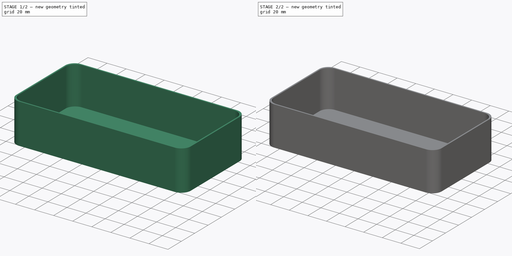
[diagram: build sequence overview — one tinted view per stage of 2, left to right]
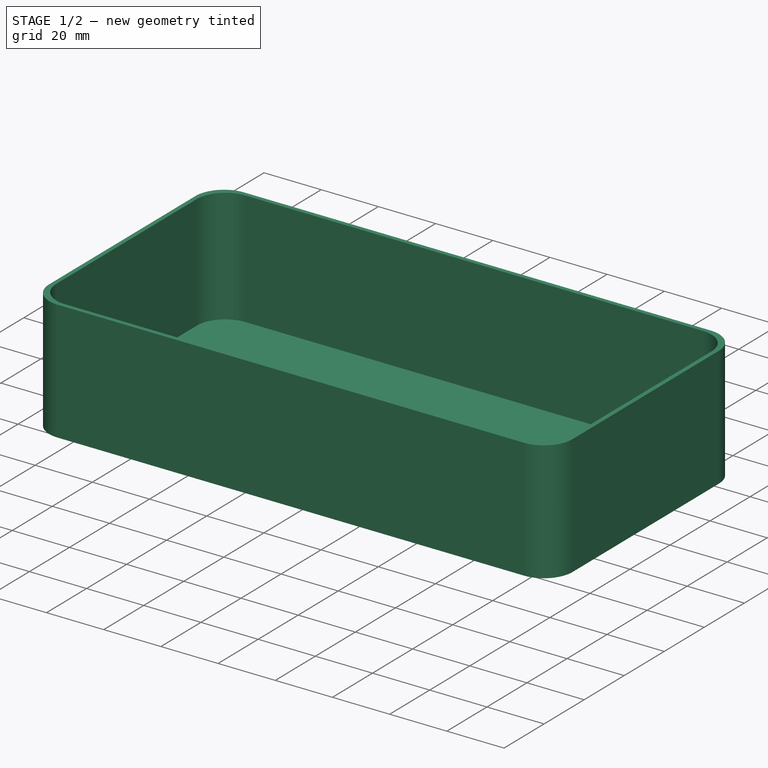
[diagram: stage 1 of 2 — iso view after this stage's code; geometry added in this stage tinted green]
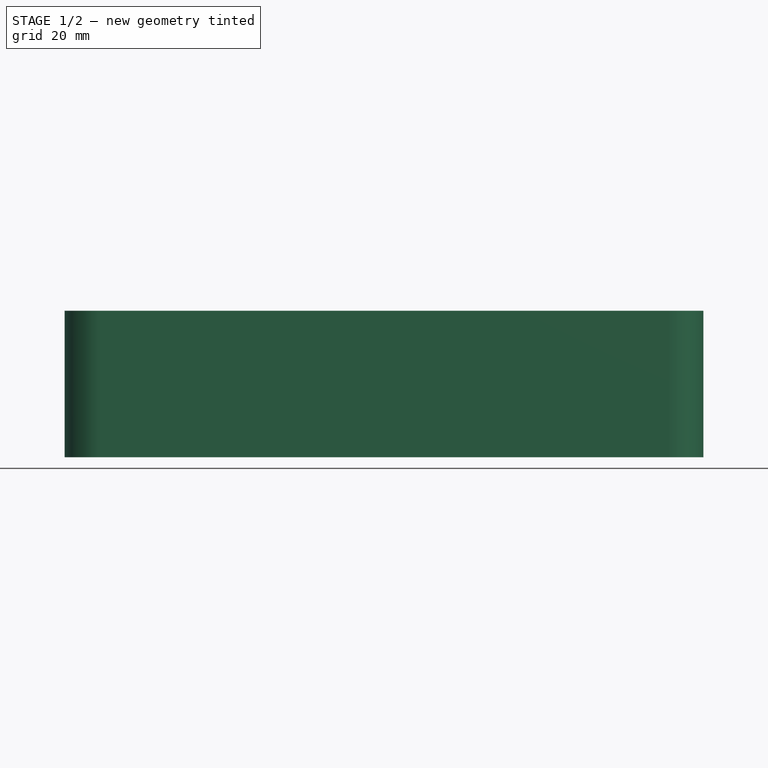
[diagram: stage 1 of 2 — front view after this stage's code; geometry added in this stage tinted green]
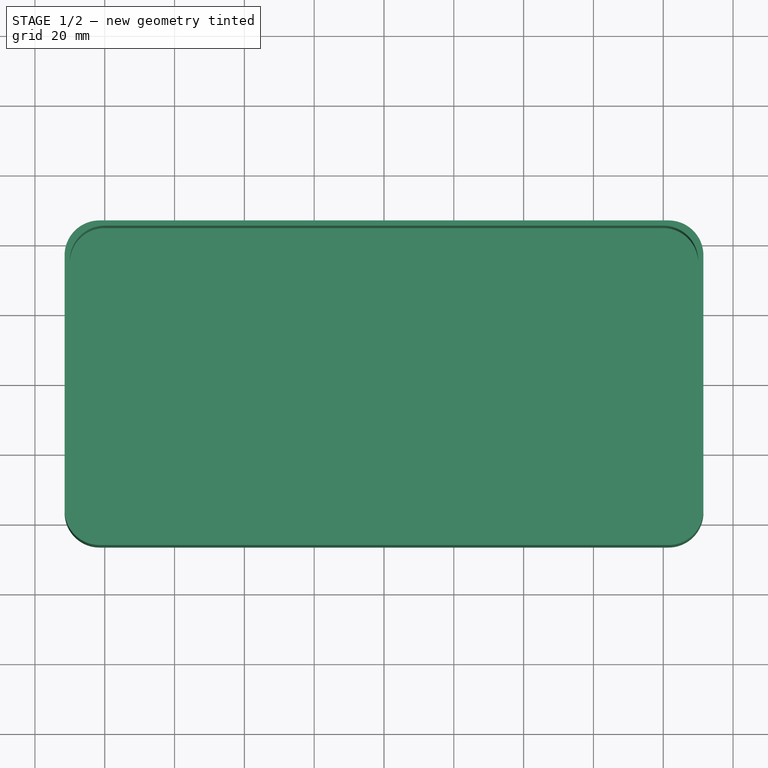
[diagram: stage 1 of 2 — top view after this stage's code; geometry added in this stage tinted green]
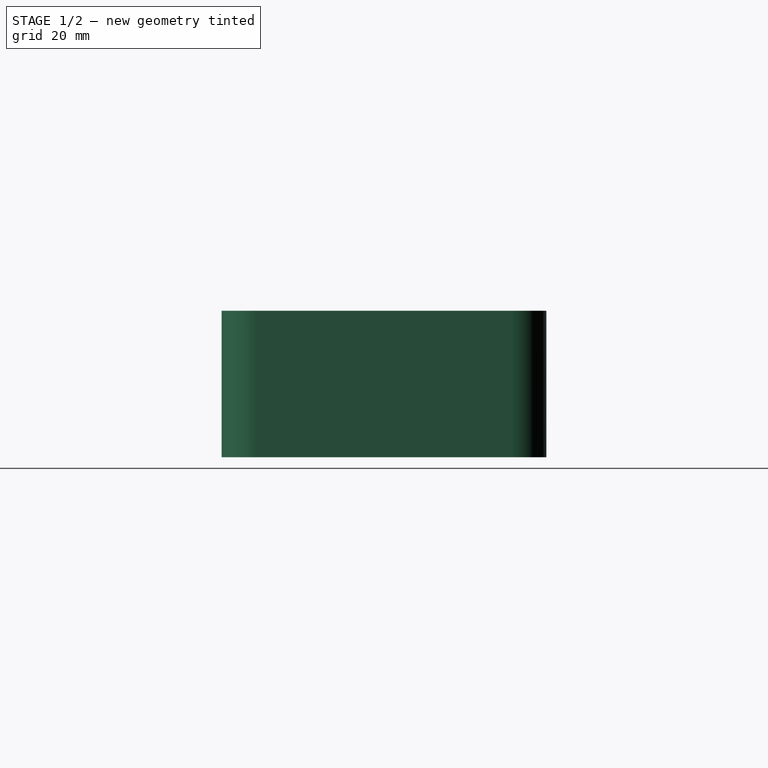
[diagram: stage 1 of 2 — right view after this stage's code; geometry added in this stage tinted green]
FCSTD DOCUMENT  (FreeCAD 1.0R39285 (Git))
Label: 01_Skadis_Tray_Box
License: All rights reserved
LicenseURL: https://en.wikipedia.org/wiki/All_rights_reserved
objects: Sketcher::SketchObject×4, PartDesign::Pad×3, PartDesign::Pocket×1, PartDesign::Body×1
note: 21 computed .brp shape members not serialized (recipe doc carries the construction recipe); baked Part::Feature solids carry a one-line shape summary decoded from their .brp

FEATURE [Sketcher::SketchObject] Sketch
  ArcFitTolerance = 1e-06
  AttachmentSupport = -> [XY_Plane]
  FullyConstrained = true
  MakeInternals = false
  MapMode = 5
  sketch-geometry (10):
    g0: LineSegment StartX=-91.5 StartY=36.5 StartZ=0 EndX=-91.5 EndY=-36.5 EndZ=0
    g1: LineSegment StartX=-81.5 StartY=-46.5 StartZ=0 EndX=81.5 EndY=-46.5 EndZ=0
    g2: LineSegment StartX=91.5 StartY=-36.5 StartZ=0 EndX=91.5 EndY=36.5 EndZ=0
    g3: LineSegment StartX=81.5 StartY=46.5 StartZ=0 EndX=-81.5 EndY=46.5 EndZ=0
    g4: ArcOfCircle CenterX=-81.5 CenterY=36.5 CenterZ=0 NormalX=0 NormalY=0 NormalZ=1 AngleXU=0 Radius=10 StartAngle=1.5708 EndAngle=3.14159
    g5: ArcOfCircle CenterX=-81.5 CenterY=-36.5 CenterZ=0 NormalX=0 NormalY=0 NormalZ=1 AngleXU=0 Radius=10 StartAngle=3.14159 EndAngle=4.71239
    g6: ArcOfCircle CenterX=81.5 CenterY=-36.5 CenterZ=0 NormalX=0 NormalY=0 NormalZ=1 AngleXU=0 Radius=10 StartAngle=4.71239 EndAngle=6.28319
    g7: ArcOfCircle CenterX=81.5 CenterY=36.5 CenterZ=0 NormalX=0 NormalY=0 NormalZ=1 AngleXU=0 Radius=10 StartAngle=-1.8e-15 EndAngle=1.5708
    g8: GeomPoint [constr] X=-91.5 Y=46.5 Z=0
    g9: GeomPoint [constr] X=91.5 Y=-46.5 Z=0
  constraints (23):
    c: Tangent(g0,g4) = -1.5708
    c: Tangent(g0,g5) = -1.5708
    c: Tangent(g1,g5) = -1.5708
    c: Tangent(g1,g6) = -1.5708
    c: Tangent(g2,g6) = -1.5708
    c: Tangent(g2,g7) = -1.5708
    c: Tangent(g3,g7) = -1.5708
    c: Tangent(g3,g4) = -1.5708
    c: Vertical(g0)
    c: Vertical(g2)
    c: Horizontal(g1)
    c: Horizontal(g3)
    c: Equal(g4,g5)
    c: Equal(g5,g6)
    c: Equal(g6,g7)
    c: PointOnObject(g8,g0)
    c: PointOnObject(g8,g3)
    c: PointOnObject(g9,g1)
    c: PointOnObject(g9,g2)
    c: Distance(g0,g2) = 183
    c: Distance(g1,g3) = 93
    c: Radius(g5) = 10
    c: Symmetric(g8,g9,g-1)
FEATURE [PartDesign::Pad] Pad
  Direction = (0,0,1)
  Length = 42
  Length2 = 10
  Profile = -> Sketch
  ReferenceAxis = -> Sketch [N_Axis]
  Refine = true
  Suppressed = false
  Type = 0
FEATURE [Sketcher::SketchObject] Sketch001
  ArcFitTolerance = 1e-06
  AttachmentSupport = -> [Pad]
  FullyConstrained = true
  MakeInternals = false
  MapMode = 5
  Placement = pos=(0,0,42) rot=(0,0,1;0rad)
  sketch-geometry (10):
    g0: LineSegment StartX=-90 StartY=35 StartZ=0 EndX=-90 EndY=-35 EndZ=0
    g1: LineSegment StartX=-80 StartY=-45 StartZ=0 EndX=80 EndY=-45 EndZ=0
    g2: LineSegment StartX=90 StartY=-35 StartZ=0 EndX=90 EndY=35 EndZ=0
    g3: LineSegment StartX=80 StartY=45 StartZ=0 EndX=-80 EndY=45 EndZ=0
    g4: ArcOfCircle CenterX=-80 CenterY=35 CenterZ=0 NormalX=0 NormalY=0 NormalZ=1 AngleXU=0 Radius=10 StartAngle=1.5708 EndAngle=3.14159
    g5: ArcOfCircle CenterX=-80 CenterY=-35 CenterZ=0 NormalX=0 NormalY=0 NormalZ=1 AngleXU=0 Radius=10 StartAngle=3.14159 EndAngle=4.71239
    g6: ArcOfCircle CenterX=80 CenterY=-35 CenterZ=0 NormalX=0 NormalY=0 NormalZ=1 AngleXU=0 Radius=10 StartAngle=4.71239 EndAngle=6.28319
    g7: ArcOfCircle CenterX=80 CenterY=35 CenterZ=0 NormalX=0 NormalY=0 NormalZ=1 AngleXU=0 Radius=10 StartAngle=-1.714e-13 EndAngle=1.5708
    g8: GeomPoint [constr] X=-90 Y=45 Z=0
    g9: GeomPoint [constr] X=90 Y=-45 Z=0
  constraints (23):
    c: Tangent(g0,g4) = -1.5708
    c: Tangent(g0,g5) = -1.5708
    c: Tangent(g1,g5) = -1.5708
    c: Tangent(g1,g6) = -1.5708
    c: Tangent(g2,g6) = -1.5708
    c: Tangent(g2,g7) = -1.5708
    c: Tangent(g3,g7) = -1.5708
    c: Tangent(g3,g4) = -1.5708
    c: Vertical(g0)
    c: Vertical(g2)
    c: Horizontal(g1)
    c: Horizontal(g3)
    c: Equal(g4,g5)
    c: Equal(g5,g6)
    c: Equal(g6,g7)
    c: PointOnObject(g8,g0)
    c: PointOnObject(g8,g3)
    c: PointOnObject(g9,g1)
    c: PointOnObject(g9,g2)
    c: Distance(g0,g2) = 180
    c: Distance(g1,g3) = 90
    c: Radius(g5) = 10
    c: Symmetric(g8,g9,g-1)
FEATURE [PartDesign::Pocket] Pocket
  BaseFeature = -> Pad
  Direction = (0,0,-1)
  Length = 40
  Length2 = 5
  Profile = -> Sketch001
  ReferenceAxis = -> Sketch001 [N_Axis]
  Refine = true
  Suppressed = false
  Type = 0
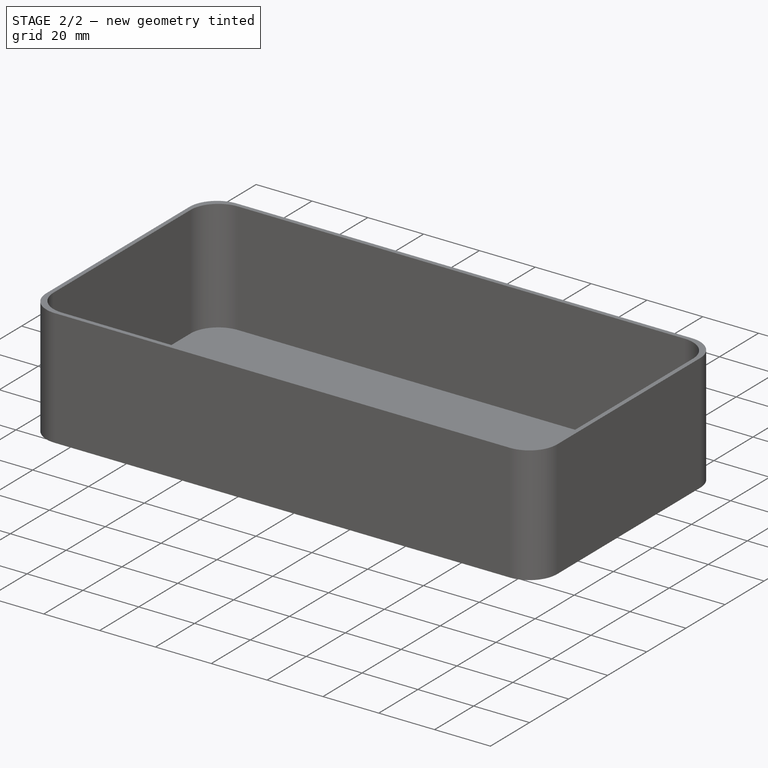
[diagram: stage 2 of 2 — iso view after this stage's code; geometry added in this stage tinted green]
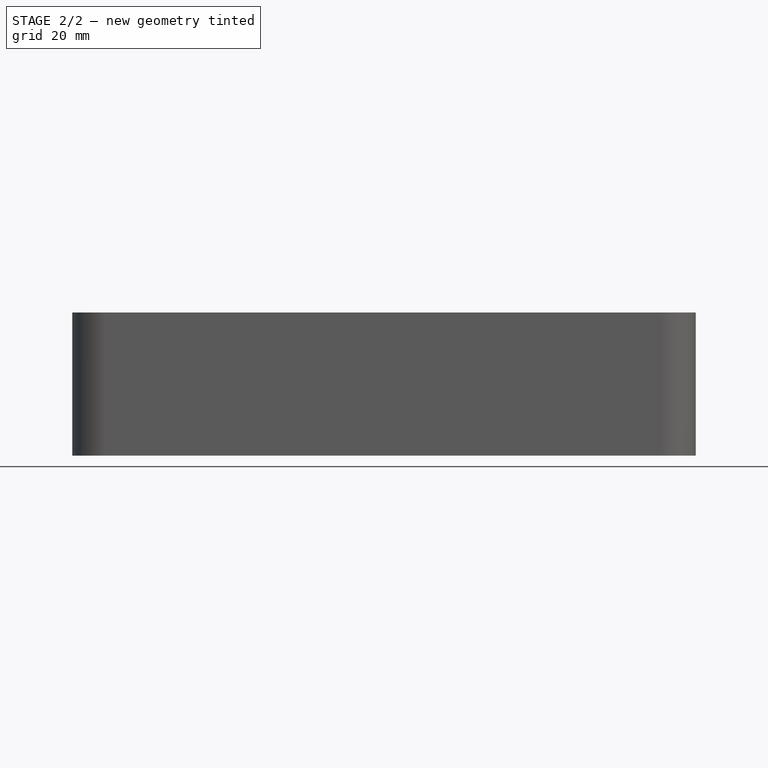
[diagram: stage 2 of 2 — front view after this stage's code; geometry added in this stage tinted green]
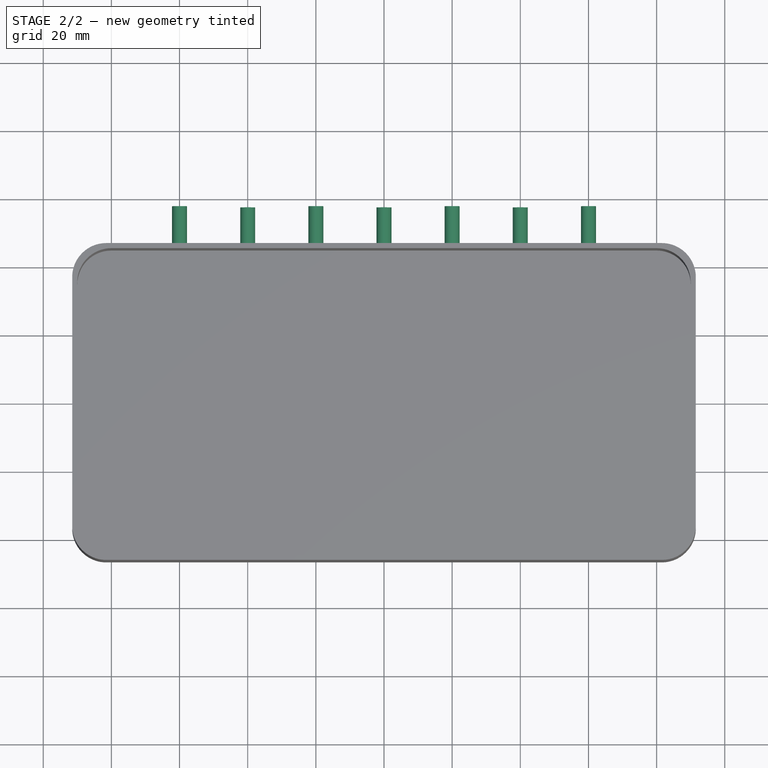
[diagram: stage 2 of 2 — top view after this stage's code; geometry added in this stage tinted green]
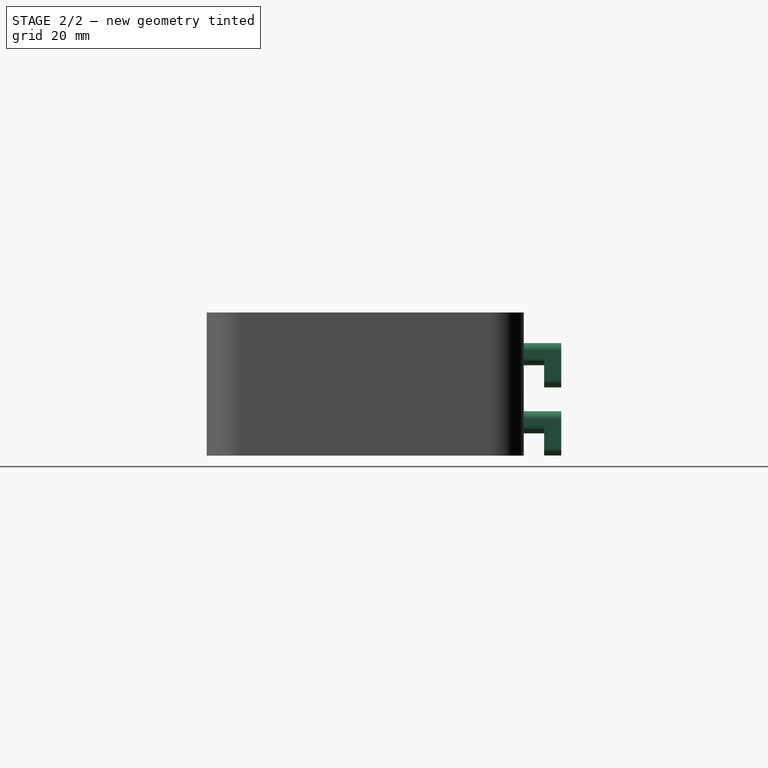
[diagram: stage 2 of 2 — right view after this stage's code; geometry added in this stage tinted green]
FEATURE [Sketcher::SketchObject] Sketch002  label="Skadis_Hooks_Base"
  ArcFitTolerance = 1e-06
  AttachmentSupport = -> [Pocket]
  ExternalGeometry = -> [Pocket]
  FullyConstrained = true
  MakeInternals = false
  MapMode = 5
  Placement = pos=(0,46.5,0) rot=(0,0.707107,0.707107;3.14159rad)
  sketch-geometry (29):
    g0: ArcOfCircle CenterX=-20 CenterY=30.8 CenterZ=0 NormalX=0 NormalY=0 NormalZ=1 AngleXU=0 Radius=2.2 StartAngle=5e-16 EndAngle=3.14159
    g1: ArcOfCircle CenterX=-20 CenterY=28.7 CenterZ=0 NormalX=0 NormalY=0 NormalZ=1 AngleXU=0 Radius=2.2 StartAngle=3.14159 EndAngle=6.28319
    g2: LineSegment StartX=-17.8 StartY=30.8 StartZ=0 EndX=-17.8 EndY=28.7 EndZ=0
    g3: LineSegment StartX=-22.2 StartY=30.8 StartZ=0 EndX=-22.2 EndY=28.7 EndZ=0
    g4: ArcOfCircle CenterX=20 CenterY=30.8 CenterZ=0 NormalX=0 NormalY=0 NormalZ=1 AngleXU=0 Radius=2.2 StartAngle=2e-16 EndAngle=3.14159
    g5: ArcOfCircle CenterX=20 CenterY=28.7 CenterZ=0 NormalX=0 NormalY=0 NormalZ=1 AngleXU=0 Radius=2.2 StartAngle=3.14159 EndAngle=6.28319
    g6: LineSegment StartX=22.2 StartY=30.8 StartZ=0 EndX=22.2 EndY=28.7 EndZ=0
    g7: LineSegment StartX=17.8 StartY=30.8 StartZ=0 EndX=17.8 EndY=28.7 EndZ=0
    g8: ArcOfCircle CenterX=60 CenterY=30.8 CenterZ=0 NormalX=0 NormalY=0 NormalZ=1 AngleXU=0 Radius=2.2 StartAngle=8e-16 EndAngle=3.14159
    g9: ArcOfCircle CenterX=60 CenterY=28.7 CenterZ=0 NormalX=0 NormalY=0 NormalZ=1 AngleXU=0 Radius=2.2 StartAngle=3.14159 EndAngle=6.28319
    g10: LineSegment StartX=62.2 StartY=30.8 StartZ=0 EndX=62.2 EndY=28.7 EndZ=0
    g11: LineSegment StartX=57.8 StartY=30.8 StartZ=0 EndX=57.8 EndY=28.7 EndZ=0
    g12: ArcOfCircle CenterX=-40 CenterY=10.8 CenterZ=0 NormalX=0 NormalY=0 NormalZ=1 AngleXU=0 Radius=2.2 StartAngle=5.711e-13 EndAngle=3.14159
    g13: ArcOfCircle CenterX=-40 CenterY=8.7 CenterZ=0 NormalX=0 NormalY=0 NormalZ=1 AngleXU=0 Radius=2.2 StartAngle=3.14159 EndAngle=6.28319
    g14: LineSegment StartX=-37.8 StartY=10.8 StartZ=0 EndX=-37.8 EndY=8.7 EndZ=0
    g15: LineSegment StartX=-42.2 StartY=10.8 StartZ=0 EndX=-42.2 EndY=8.7 EndZ=0
    g16: ArcOfCircle CenterX=0 CenterY=10.8 CenterZ=0 NormalX=0 NormalY=0 NormalZ=1 AngleXU=0 Radius=2.2 StartAngle=5.74e-13 EndAngle=3.14159
    g17: ArcOfCircle CenterX=2e-16 CenterY=8.7 CenterZ=0 NormalX=0 NormalY=0 NormalZ=1 AngleXU=0 Radius=2.2 StartAngle=3.14159 EndAngle=6.28319
    g18: LineSegment StartX=2.2 StartY=10.8 StartZ=0 EndX=2.2 EndY=8.7 EndZ=0
    g19: LineSegment StartX=-2.2 StartY=10.8 StartZ=0 EndX=-2.2 EndY=8.7 EndZ=0
    g20: ArcOfCircle CenterX=40 CenterY=10.8 CenterZ=0 NormalX=0 NormalY=0 NormalZ=1 AngleXU=0 Radius=2.2 StartAngle=5.708e-13 EndAngle=3.14159
    g21: ArcOfCircle CenterX=40 CenterY=8.7 CenterZ=0 NormalX=0 NormalY=0 NormalZ=1 AngleXU=0 Radius=2.2 StartAngle=3.14159 EndAngle=6.28319
    g22: LineSegment StartX=42.2 StartY=10.8 StartZ=0 EndX=42.2 EndY=8.7 EndZ=0
    g23: LineSegment StartX=37.8 StartY=10.8 StartZ=0 EndX=37.8 EndY=8.7 EndZ=0
    g24: ArcOfCircle CenterX=-60 CenterY=30.8 CenterZ=0 NormalX=0 NormalY=0 NormalZ=1 AngleXU=0 Radius=2.2 StartAngle=4e-16 EndAngle=3.14159
    g25: ArcOfCircle CenterX=-60 CenterY=28.7 CenterZ=0 NormalX=0 NormalY=0 NormalZ=1 AngleXU=0 Radius=2.2 StartAngle=3.14159 EndAngle=6.28319
    g26: LineSegment StartX=-57.8 StartY=30.8 StartZ=0 EndX=-57.8 EndY=28.7 EndZ=0
    g27: LineSegment StartX=-62.2 StartY=30.8 StartZ=0 EndX=-62.2 EndY=28.7 EndZ=0
    g28: GeomPoint [constr] X=-40 Y=30.8 Z=0
  constraints (72):
    c: Tangent(g0,g2) = 1.5708
    c: Tangent(g0,g3) = -1.5708
    c: Tangent(g1,g2) = 1.5708
    c: Tangent(g1,g3) = -1.5708
    c: Equal(g0,g1)
    c: Vertical(g3)
    c: Distance(g0,g1) = 2.1
    c: Radius(g0) = 2.2
    c: Tangent(g4,g6) = 1.5708
    c: Tangent(g4,g7) = -1.5708
    c: Tangent(g5,g6) = 1.5708
    c: Tangent(g5,g7) = -1.5708
    c: Equal(g4,g5)
    c: Vertical(g7)
    c: Distance(g4,g5) = 2.1
    c: Radius(g4) = 2.2
    c: Tangent(g8,g10) = 1.5708
    c: Tangent(g8,g11) = -1.5708
    c: Tangent(g9,g10) = 1.5708
    c: Tangent(g9,g11) = -1.5708
    c: Equal(g8,g9)
    c: Vertical(g11)
    c: Distance(g8,g9) = 2.1
    c: Radius(g8) = 2.2
    c: Tangent(g12,g14) = 1.5708
    c: Tangent(g12,g15) = -1.5708
    c: Tangent(g13,g14) = 1.5708
    c: Tangent(g13,g15) = -1.5708
    c: Equal(g12,g13)
    c: Vertical(g15)
    c: Distance(g12,g13) = 2.1
    c: Radius(g12) = 2.2
    c: Tangent(g16,g18) = 1.5708
    c: Tangent(g16,g19) = -1.5708
    c: Tangent(g17,g18) = 1.5708
    c: Tangent(g17,g19) = -1.5708
    c: Equal(g16,g17)
    c: Vertical(g19)
    c: Distance(g16,g17) = 2.1
    c: Radius(g16) = 2.2
    c: Tangent(g20,g22) = 1.5708
    c: Tangent(g20,g23) = -1.5708
    c: Tangent(g21,g22) = 1.5708
    c: Tangent(g21,g23) = -1.5708
    c: Equal(g20,g21)
    c: Vertical(g23)
    c: Distance(g20,g21) = 2.1
    c: Radius(g20) = 2.2
    c: Tangent(g24,g26) = 1.5708
    c: Tangent(g24,g27) = -1.5708
    c: Tangent(g25,g26) = 1.5708
    c: Tangent(g25,g27) = -1.5708
    c: Equal(g24,g25)
    c: Vertical(g27)
    c: Distance(g24,g25) = 2.1
    c: Radius(g24) = 2.2
    c: Horizontal(g24,g0)
    c: Horizontal(g0,g4)
    c: Horizontal(g4,g8)
    c: DistanceX(g24,g0) = 40
    c: DistanceX(g0,g4) = 40
    c: DistanceX(g4,g8) = 40
    c: DistanceX(g1,g-1) = 20
    c: Horizontal(g12,g16)
    c: Horizontal(g16,g20)
    c: DistanceX(g12,g16) = 40
    c: DistanceX(g16,g20) = 40
    c: DistanceX(g16,g-1) = 0
    c: DistanceX(g24,g28) = 20
    c: Horizontal(g28,g24)
    c: DistanceY(g12,g28) = 20
    c: DistanceY(g-1,g16) = 10.8
FEATURE [PartDesign::Pad] Pad001
  BaseFeature = -> Pocket
  Direction = (0,1,-2e-16)
  Length = 6
  Length2 = 10
  Profile = -> Sketch002
  ReferenceAxis = -> Sketch002 [N_Axis]
  Refine = true
  Suppressed = false
  Type = 0
FEATURE [Sketcher::SketchObject] Sketch003
  ArcFitTolerance = 1e-06
  AttachmentSupport = -> [Pad001]
  ExternalGeometry = -> [Pad001]
  FullyConstrained = true
  MakeInternals = false
  MapMode = 5
  Placement = pos=(0,52.5,-1.78e-14) rot=(0,0.707107,0.707107;3.14159rad)
  sketch-geometry (28):
    g0: ArcOfCircle CenterX=60 CenterY=30.8 CenterZ=0 NormalX=0 NormalY=0 NormalZ=1 AngleXU=0 Radius=2.2 StartAngle=2e-16 EndAngle=3.14159
    g1: ArcOfCircle CenterX=60 CenterY=22.2 CenterZ=0 NormalX=0 NormalY=0 NormalZ=1 AngleXU=0 Radius=2.2 StartAngle=3.14159 EndAngle=6.28319
    g2: LineSegment StartX=62.2 StartY=30.8 StartZ=0 EndX=62.2 EndY=22.2 EndZ=0
    g3: LineSegment StartX=57.8 StartY=30.8 StartZ=0 EndX=57.8 EndY=22.2 EndZ=0
    g4: ArcOfCircle CenterX=20 CenterY=30.8 CenterZ=0 NormalX=0 NormalY=0 NormalZ=1 AngleXU=0 Radius=2.2 StartAngle=5e-16 EndAngle=3.14159
    g5: ArcOfCircle CenterX=20 CenterY=22.2 CenterZ=0 NormalX=0 NormalY=0 NormalZ=1 AngleXU=0 Radius=2.2 StartAngle=3.14159 EndAngle=6.28319
    g6: LineSegment StartX=22.2 StartY=30.8 StartZ=0 EndX=22.2 EndY=22.2 EndZ=0
    g7: LineSegment StartX=17.8 StartY=30.8 StartZ=0 EndX=17.8 EndY=22.2 EndZ=0
    g8: ArcOfCircle CenterX=40 CenterY=10.8 CenterZ=0 NormalX=0 NormalY=0 NormalZ=1 AngleXU=0 Radius=2.2 StartAngle=2e-16 EndAngle=3.14159
    g9: ArcOfCircle CenterX=40 CenterY=2.2 CenterZ=0 NormalX=0 NormalY=0 NormalZ=1 AngleXU=0 Radius=2.2 StartAngle=3.14159 EndAngle=6.28319
    g10: LineSegment StartX=42.2 StartY=10.8 StartZ=0 EndX=42.2 EndY=2.2 EndZ=0
    g11: LineSegment StartX=37.8 StartY=10.8 StartZ=0 EndX=37.8 EndY=2.2 EndZ=0
    g12: ArcOfCircle CenterX=-20 CenterY=30.8 CenterZ=0 NormalX=0 NormalY=0 NormalZ=1 AngleXU=0 Radius=2.2 StartAngle=-7.1e-15 EndAngle=3.14159
    g13: ArcOfCircle CenterX=-20 CenterY=22.2 CenterZ=0 NormalX=0 NormalY=0 NormalZ=1 AngleXU=0 Radius=2.2 StartAngle=3.14159 EndAngle=6.28319
    g14: LineSegment StartX=-17.8 StartY=30.8 StartZ=0 EndX=-17.8 EndY=22.2 EndZ=0
    g15: LineSegment StartX=-22.2 StartY=30.8 StartZ=0 EndX=-22.2 EndY=22.2 EndZ=0
    g16: ArcOfCircle CenterX=0 CenterY=10.8 CenterZ=0 NormalX=0 NormalY=0 NormalZ=1 AngleXU=0 Radius=2.2 StartAngle=0 EndAngle=3.14159
    g17: ArcOfCircle CenterX=-3e-16 CenterY=2.2 CenterZ=0 NormalX=0 NormalY=0 NormalZ=1 AngleXU=0 Radius=2.2 StartAngle=3.14159 EndAngle=6.28319
    g18: LineSegment StartX=2.2 StartY=10.8 StartZ=0 EndX=2.2 EndY=2.2 EndZ=0
    g19: LineSegment StartX=-2.2 StartY=10.8 StartZ=0 EndX=-2.2 EndY=2.2 EndZ=0
    g20: ArcOfCircle CenterX=-40 CenterY=10.8 CenterZ=0 NormalX=0 NormalY=0 NormalZ=1 AngleXU=0 Radius=2.2 StartAngle=-8.9848e-12 EndAngle=3.14159
    g21: ArcOfCircle CenterX=-40 CenterY=2.2 CenterZ=0 NormalX=0 NormalY=0 NormalZ=1 AngleXU=0 Radius=2.2 StartAngle=3.14159 EndAngle=6.28319
    g22: LineSegment StartX=-37.8 StartY=10.8 StartZ=0 EndX=-37.8 EndY=2.2 EndZ=0
    g23: LineSegment StartX=-42.2 StartY=10.8 StartZ=0 EndX=-42.2 EndY=2.2 EndZ=0
    g24: ArcOfCircle CenterX=-60 CenterY=30.8 CenterZ=0 NormalX=0 NormalY=0 NormalZ=1 AngleXU=0 Radius=2.2 StartAngle=1e-16 EndAngle=3.14159
    g25: ArcOfCircle CenterX=-60 CenterY=22.2 CenterZ=0 NormalX=0 NormalY=0 NormalZ=1 AngleXU=0 Radius=2.2 StartAngle=3.14159 EndAngle=6.28319
    g26: LineSegment StartX=-57.8 StartY=30.8 StartZ=0 EndX=-57.8 EndY=22.2 EndZ=0
    g27: LineSegment StartX=-62.2 StartY=30.8 StartZ=0 EndX=-62.2 EndY=22.2 EndZ=0
  constraints (63):
    c: Tangent(g0,g2) = 1.5708
    c: Tangent(g0,g3) = -1.5708
    c: Tangent(g1,g2) = 1.5708
    c: Tangent(g1,g3) = -1.5708
    c: Equal(g0,g1)
    c: Vertical(g3)
    c: Distance(g0,g1) = 8.6
    c: Radius(g0) = 2.2
    c: Tangent(g4,g6) = 1.5708
    c: Tangent(g4,g7) = -1.5708
    c: Tangent(g5,g6) = 1.5708
    c: Tangent(g5,g7) = -1.5708
    c: Equal(g4,g5)
    c: Vertical(g7)
    c: Distance(g4,g5) = 8.6
    c: Radius(g4) = 2.2
    c: Tangent(g8,g10) = 1.5708
    c: Tangent(g8,g11) = -1.5708
    c: Tangent(g9,g10) = 1.5708
    c: Tangent(g9,g11) = -1.5708
    c: Equal(g8,g9)
    c: Vertical(g11)
    c: Distance(g8,g9) = 8.6
    c: Radius(g8) = 2.2
    c: Tangent(g12,g14) = 1.5708
    c: Tangent(g12,g15) = -1.5708
    c: Tangent(g13,g14) = 1.5708
    c: Tangent(g13,g15) = -1.5708
    c: Equal(g12,g13)
    c: Vertical(g15)
    c: Distance(g12,g13) = 8.6
    c: Radius(g12) = 2.2
    c: Tangent(g16,g18) = 1.5708
    c: Tangent(g16,g19) = -1.5708
    c: Tangent(g17,g18) = 1.5708
    c: Tangent(g17,g19) = -1.5708
    c: Equal(g16,g17)
    c: Vertical(g19)
    c: Distance(g16,g17) = 8.6
    c: Radius(g16) = 2.2
    c: Tangent(g20,g22) = 1.5708
    c: Tangent(g20,g23) = -1.5708
    c: Tangent(g21,g22) = 1.5708
    c: Tangent(g21,g23) = -1.5708
    c: Equal(g20,g21)
    c: Vertical(g23)
    c: Distance(g20,g21) = 8.6
    c: Radius(g20) = 2.2
    c: Tangent(g24,g26) = 1.5708
    c: Tangent(g24,g27) = -1.5708
    c: Tangent(g25,g26) = 1.5708
    c: Tangent(g25,g27) = -1.5708
    c: Equal(g24,g25)
    c: Vertical(g27)
    c: Distance(g24,g25) = 8.6
    c: Radius(g24) = 2.2
    c: Coincident(g24,g-3)
    c: Coincident(g-4,g12)
    c: Coincident(g-7,g20)
    c: Coincident(g-8,g16)
    c: Coincident(g4,g-5)
    c: Coincident(g-9,g8)
    c: Coincident(g-6,g0)
FEATURE [PartDesign::Pad] Pad002
  BaseFeature = -> Pad001
  Direction = (0,1,-2e-16)
  Length = 5
  Length2 = 10
  Profile = -> Sketch003
  ReferenceAxis = -> Sketch003 [N_Axis]
  Refine = true
  Suppressed = false
  Type = 0
FEATURE [PartDesign::Body] Body
  AllowCompound = false
  Group = -> [Sketch,Pad,Sketch001,Pocket,Sketch002,Pad001,Sketch003,Pad002]
  Origin = -> Origin
  Tip = -> Pad002
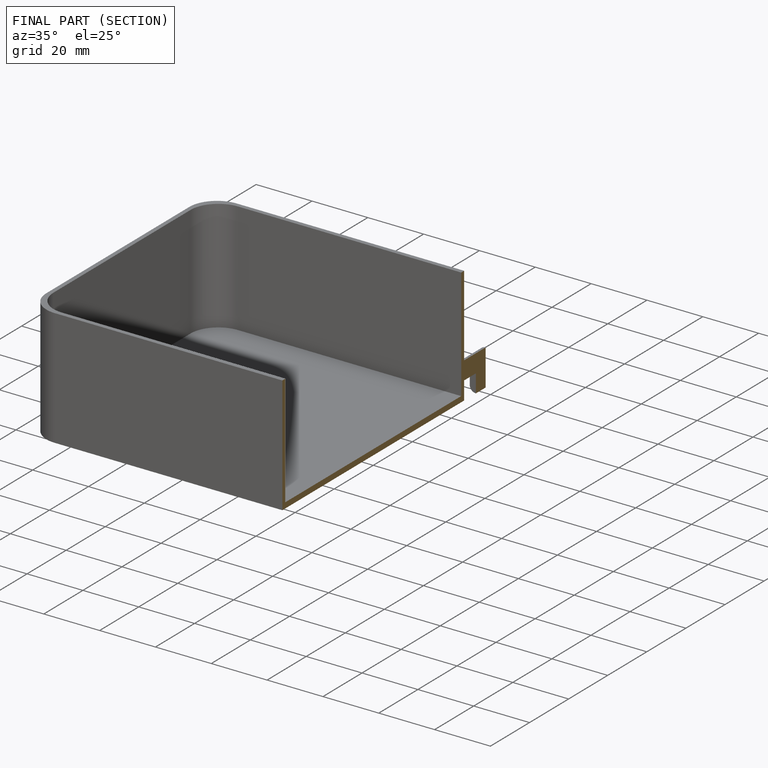
[diagram: finished part — half-section view (interior)]
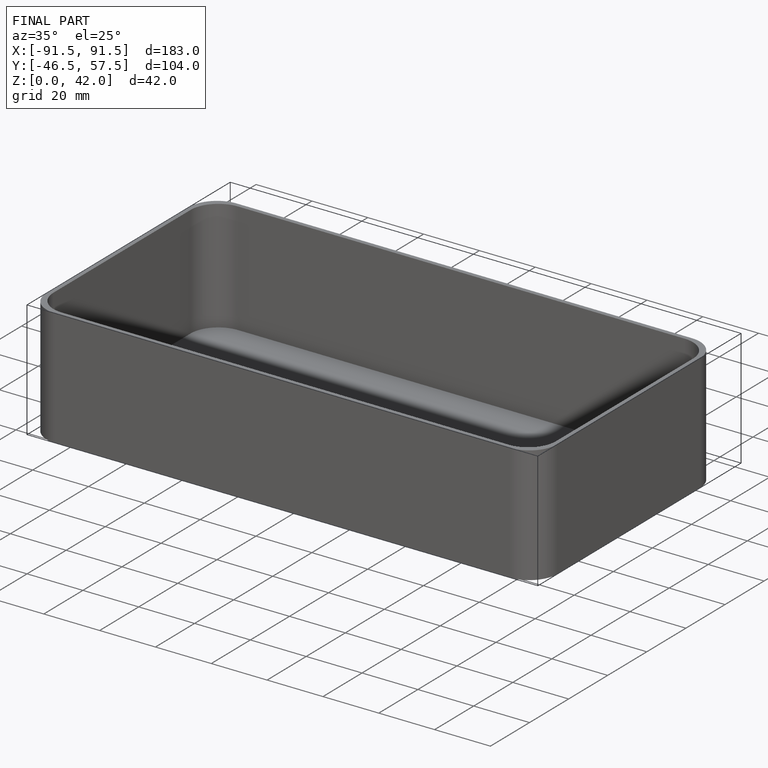
[diagram: finished part — iso view with bounding-box wireframe]
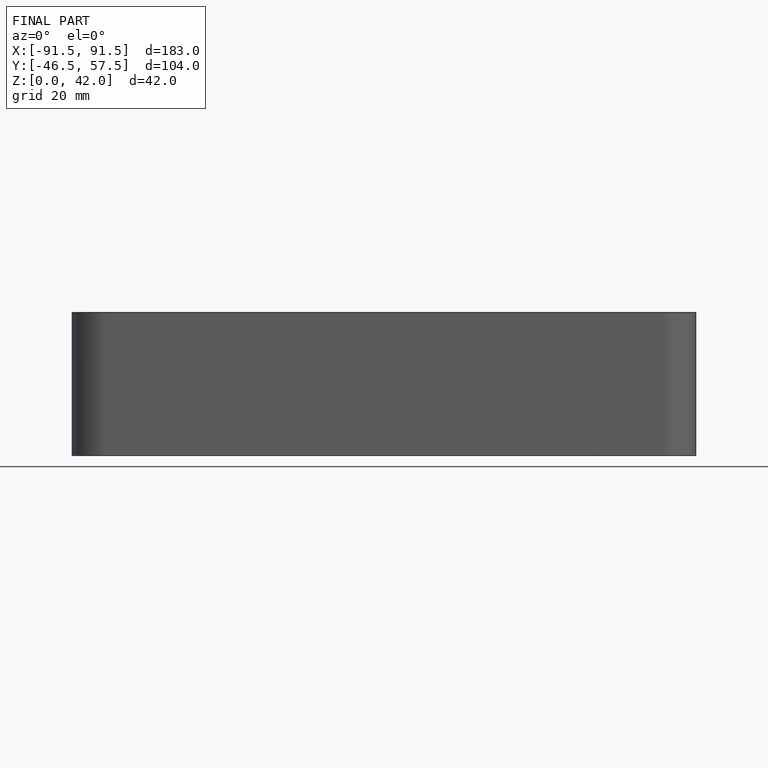
[diagram: finished part — front view with bounding-box wireframe]
